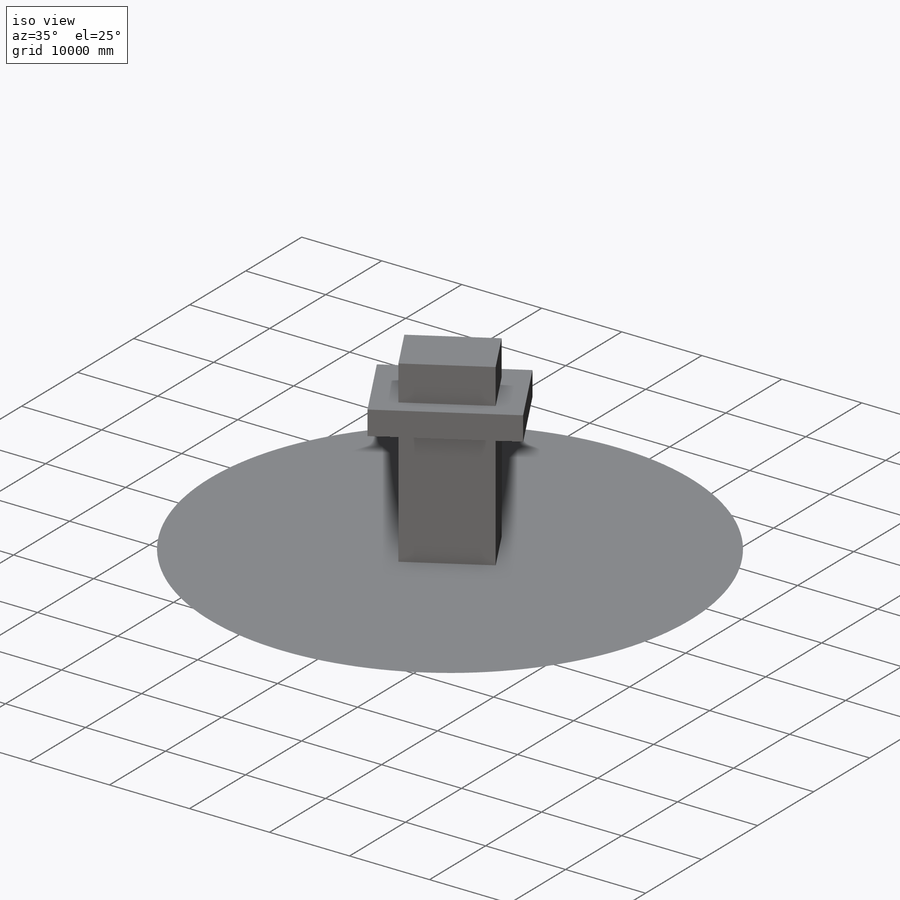
[diagram: iso view]
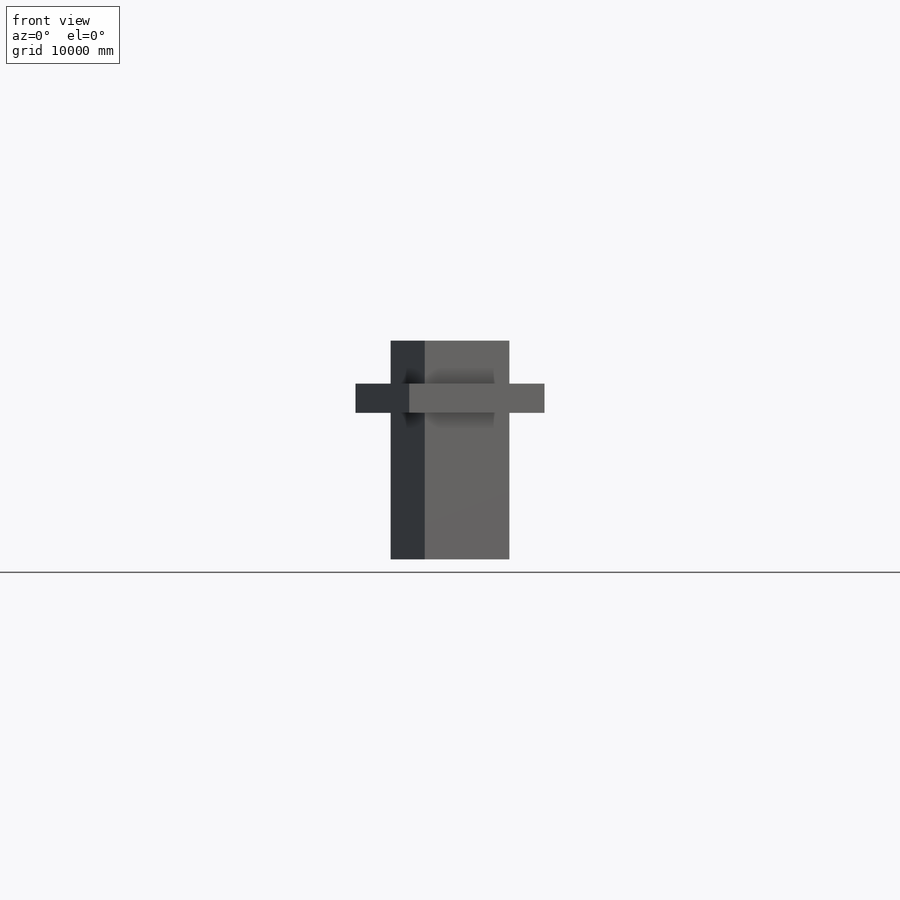
[diagram: front view]
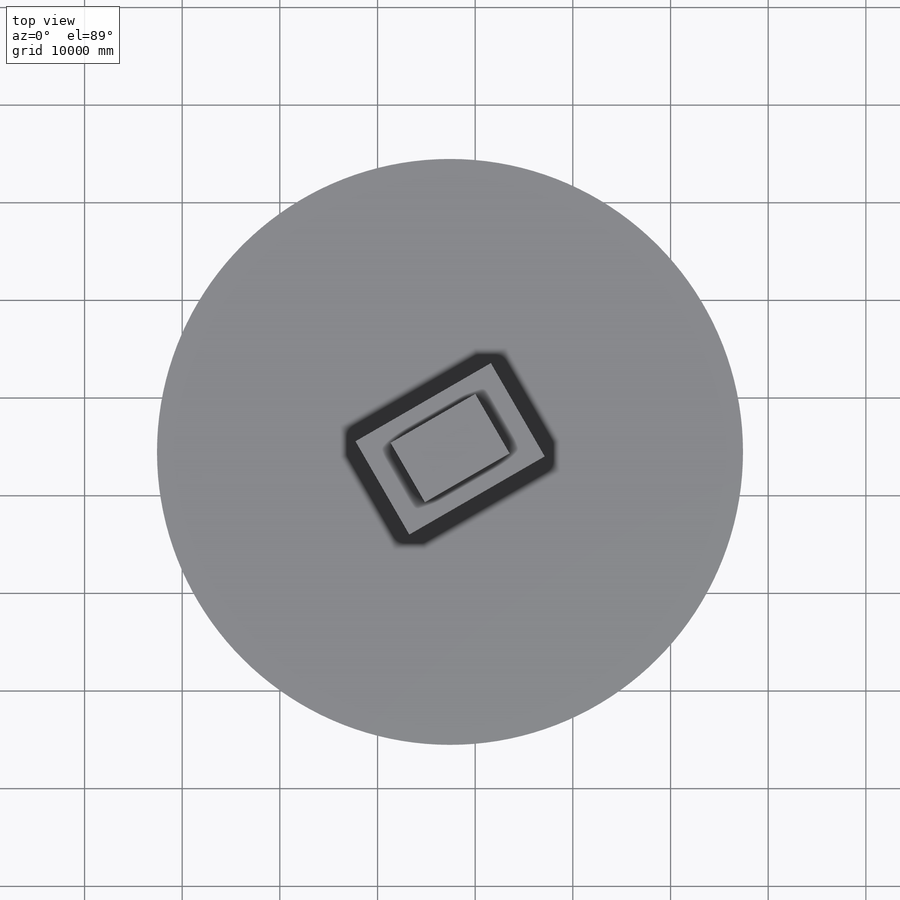
[diagram: top view]
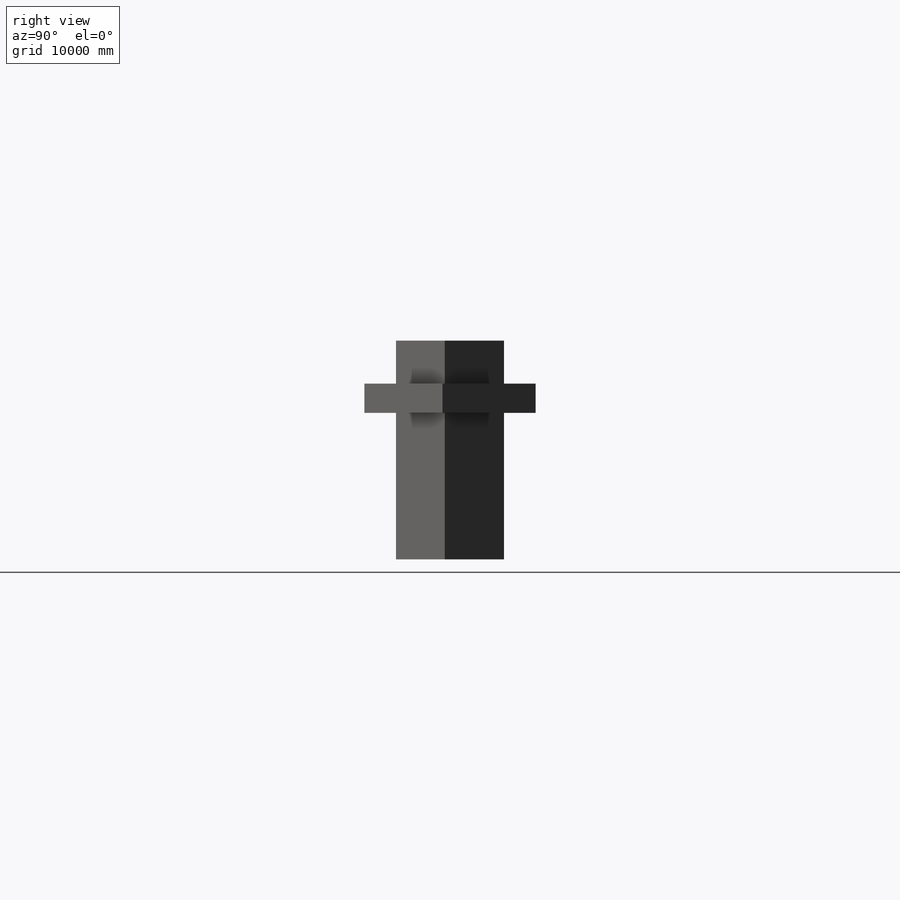
[diagram: right view]
SOLIDWORKS PART (.sldprt)
format: sldprt  version: not decoded by parser v0  size: 226,816 bytes
history: native  units: mm
features: sketch x4, extrude x4, material x1 (+14 scaffold rows collapsed)
feature tree (23):
  scaffold x14  (default folders/planes/origin — collapsed)
  material  "Material <not specified>"
  sketch  "Sketch1"  dims[c1.D1=~51.896616mm c2.D1=30.0deg c2.D2=7000.0mm c2.D3=10000.0mm]
  extrude  "Extrude1"  Depth=15000mm
  sketch  "Sketch2"  dims[D1=3000.0mm]
  extrude  "Extrude2"  Depth=3000mm
  sketch  "Sketch3"
  extrude  "Extrude3"  Depth=4400mm
  sketch  "Sketch4"  dims[D1=60000.0mm]
  extrude  "Extrude4"  Depth=0.01mm
decode coverage: 7 of 8 modeling features carry decoded parameters
note: ~ marks probable driven/reference dimensions
note: suppression state not decoded; provenance and decode notes live in map.json
